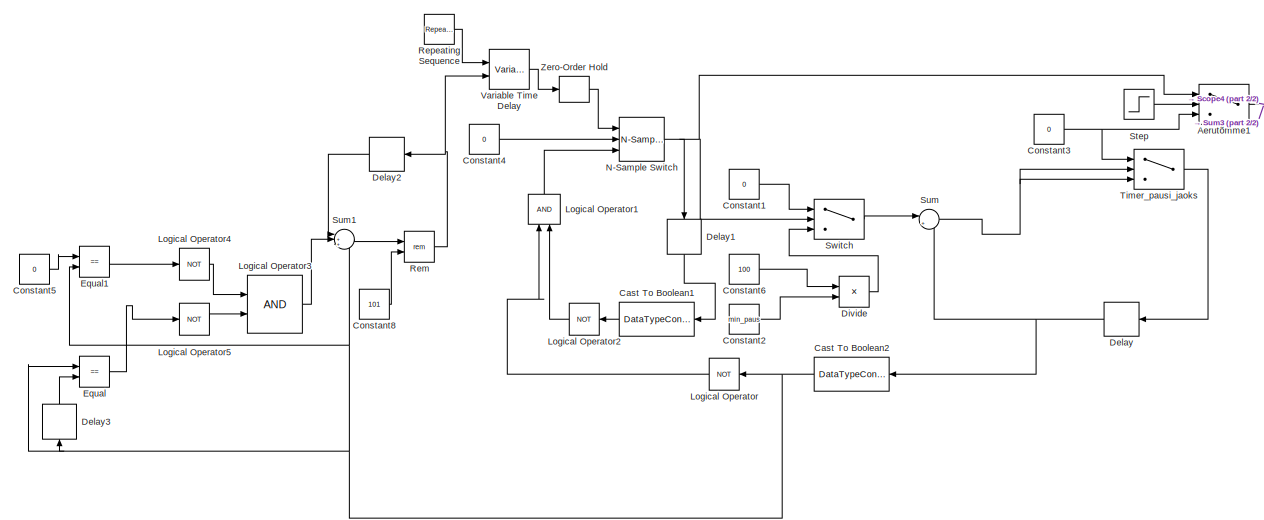
[diagram: root canvas - part 1/2, left side, full height]
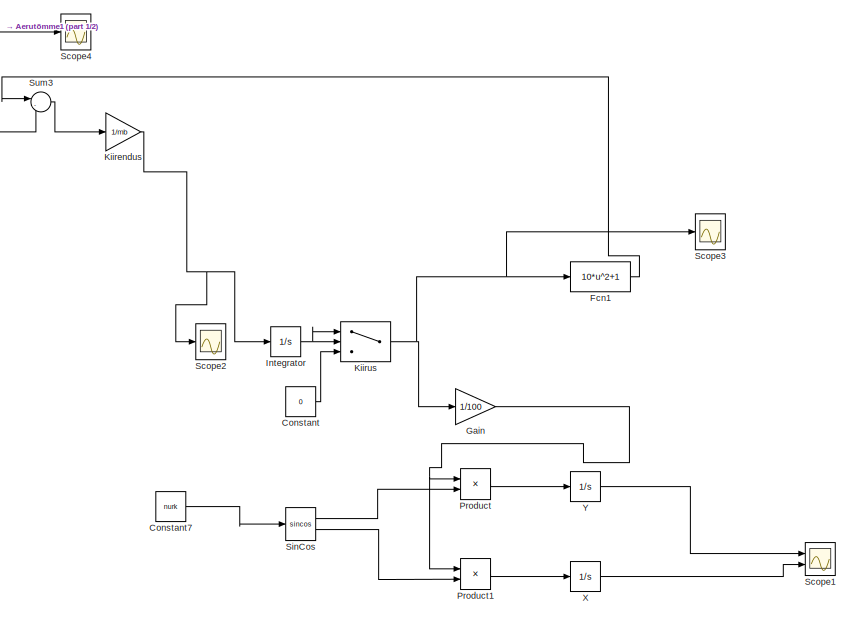
[diagram: root canvas - part 2/2, right side, full height]
MODEL slx_42fdd494897f
KIND model
CONFIG AbsTol = auto
CONFIG EnableMultiTasking = off
CONFIG FixedStep = 1
CONFIG MaxStep = auto
CONFIG MinStep = auto
CONFIG RelTol = 1e-3
CONFIG SampleTimeConstraint = Unconstrained
CONFIG Solver = FixedStepAuto
CONFIG SolverName = FixedStepAuto
CONFIG StartTime = 0.0
CONFIG StopTime = 10000
BLOCK [Switch] Aerutõmme1
  InputSameDT = off
  SaturateOnIntegerOverflow = off
  Threshold = 1
BLOCK [DataTypeConversion] Cast To Boolean1
  OutDataTypeStr = boolean
  RndMeth = Floor
  SaturateOnIntegerOverflow = off
BLOCK [DataTypeConversion] Cast To Boolean2
  OutDataTypeStr = boolean
  RndMeth = Floor
  SaturateOnIntegerOverflow = off
BLOCK [Constant] Constant
  Value = 0
BLOCK [Constant] Constant1
  Value = 0
BLOCK [Constant] Constant2
  SampleTime = 1
  Value = min_paus
BLOCK [Constant] Constant3
  Value = 0
BLOCK [Constant] Constant4
  Value = 0
BLOCK [Constant] Constant5
  Value = 0
BLOCK [Constant] Constant6
  SampleTime = 1
  Value = 100
BLOCK [Constant] Constant7
  Value = nurk
BLOCK [Constant] Constant8
  Value = 101
BLOCK [Delay] Delay
  DelayLength = 1
  InitialCondition = 0
  InputPortMap = u0
  Ports = [1, 1]
BLOCK [Delay] Delay1
  DelayLength = 1
  InitialCondition = 0
  InputPortMap = u0
  Ports = [1, 1]
BLOCK [Delay] Delay2
  DelayLength = 1
  InitialCondition = 0
  InputPortMap = u0
  Ports = [1, 1]
BLOCK [Delay] Delay3
  DelayLength = 1
  InitialCondition = 0
  InputPortMap = u0
  Ports = [1, 1]
BLOCK [Product] Divide
  InputSameDT = off
  Inputs = */
  OutDataTypeStr = Inherit: Inherit via internal rule
  Ports = [2, 1]
  RndMeth = Floor
  SaturateOnIntegerOverflow = off
BLOCK [RelationalOperator] Equal
  InputSameDT = off
  Operator = ==
  OutDataTypeStr = boolean
  Ports = [2, 1]
  RndMeth = Simplest
BLOCK [RelationalOperator] Equal1
  InputSameDT = off
  Operator = ==
  OutDataTypeStr = boolean
  Ports = [2, 1]
  RndMeth = Simplest
BLOCK [Fcn] Fcn1
  Expr = 10*u^2+1
BLOCK [Gain] Gain
  Gain = 1/100
  OutDataTypeStr = Inherit: Inherit via internal rule
  ParamDataTypeStr = Inherit: Inherit via internal rule
  SaturateOnIntegerOverflow = off
BLOCK [Integrator] Integrator
  InitialCondition = vy_0
  Ports = [1, 1]
BLOCK [Gain] Kiirendus
  Gain = 1/mb
  OutDataTypeStr = Inherit: Inherit via internal rule
  ParamDataTypeStr = Inherit: Inherit via internal rule
  SaturateOnIntegerOverflow = off
BLOCK [Switch] Kiirus
  InputSameDT = off
  SaturateOnIntegerOverflow = off
BLOCK [Logic] Logical Operator
  AllPortsSameDT = off
  IconShape = distinctive
  Operator = NOT
  OutDataTypeStr = boolean
  Ports = [1, 1]
BLOCK [Logic] Logical Operator1
  AllPortsSameDT = off
  IconShape = distinctive
  OutDataTypeStr = boolean
  Ports = [2, 1]
BLOCK [Logic] Logical Operator2
  AllPortsSameDT = off
  IconShape = distinctive
  Operator = NOT
  OutDataTypeStr = boolean
  Ports = [1, 1]
BLOCK [Logic] Logical Operator3
  AllPortsSameDT = off
  IconShape = distinctive
  OutDataTypeStr = boolean
  Ports = [2, 1]
BLOCK [Logic] Logical Operator4
  AllPortsSameDT = off
  IconShape = distinctive
  Operator = NOT
  OutDataTypeStr = boolean
  Ports = [1, 1]
BLOCK [Logic] Logical Operator5
  AllPortsSameDT = off
  IconShape = distinctive
  Operator = NOT
  OutDataTypeStr = boolean
  Ports = [1, 1]
BLOCK [Reference] N-Sample Switch  REF=dspswit3/N-Sample
Switch
  Ports = [3, 1]
  SourceBlock = dspswit3/N-Sample\nSwitch
  SourceProductBaseCode = DS
  SourceProductName = DSP System Toolbox
  SourceType = N-Sample Switch
BLOCK [Product] Product
  InputSameDT = off
  OutDataTypeStr = Inherit: Inherit via internal rule
  Ports = [2, 1]
  RndMeth = Floor
  SaturateOnIntegerOverflow = off
BLOCK [Product] Product1
  InputSameDT = off
  OutDataTypeStr = Inherit: Inherit via internal rule
  Ports = [2, 1]
  RndMeth = Floor
  SaturateOnIntegerOverflow = off
BLOCK [Math] Rem
  Operator = rem
  Ports = [2, 1]
BLOCK [Reference] Repeating Sequence  REF=simulink/Sources/Repeating
Sequence
  Ports = [0, 1]
  SourceBlock = simulink/Sources/Repeating\nSequence
  SourceProductBaseCode = SL
  SourceProductName = Simulink
  SourceType = Repeating table
BLOCK [Scope] Scope1
  Floating = off
  NumInputPorts = 2
  Ports = [2]
  ScopeSpecificationString = Simulink.scopes.TimeScopeBlockCfg('CurrentConfiguration', extmgr.ConfigurationSet(extmgr.Configuration('Core','General UI',true),extmgr.Configuration('Core','Source UI',true),extmgr.Configuration('Sources','WiredSimulink',true,'DataLoggingVariableName','ScopeData4'),extmgr.Configuration('Visuals','Time Domain',true,'SerializedDisplays',{struct('MinYLimReal','-15.03406','MaxYLimReal','135.30652','Y...<+1416ch>
BLOCK [Scope] Scope2
  Floating = off
  NumInputPorts = 1
  Ports = [1]
  ScopeSpecificationString = Simulink.scopes.TimeScopeBlockCfg('CurrentConfiguration', extmgr.ConfigurationSet(extmgr.Configuration('Core','General UI',true),extmgr.Configuration('Core','Source UI',true),extmgr.Configuration('Sources','WiredSimulink',true,'DataLoggingVariableName','ScopeData1'),extmgr.Configuration('Visuals','Time Domain',true,'SerializedDisplays',{struct('MinYLimReal','-0.04486','MaxYLimReal','0.08668','YLab...<+1439ch>
BLOCK [Scope] Scope3
  Floating = off
  NumInputPorts = 1
  Ports = [1]
  ScopeSpecificationString = Simulink.scopes.TimeScopeBlockCfg('CurrentConfiguration', extmgr.ConfigurationSet(extmgr.Configuration('Core','General UI',true),extmgr.Configuration('Core','Source UI',true),extmgr.Configuration('Sources','WiredSimulink',true,'DataLoggingVariableName','ScopeData2'),extmgr.Configuration('Visuals','Time Domain',true,'SerializedDisplays',{struct('MinYLimReal','-0.78119','MaxYLimReal','7.03068','YLab...<+1436ch>
BLOCK [Scope] Scope4
  Floating = off
  NumInputPorts = 1
  Ports = [1]
  ScopeSpecificationString = Simulink.scopes.TimeScopeBlockCfg('CurrentConfiguration', extmgr.ConfigurationSet(extmgr.Configuration('Core','General UI',true),extmgr.Configuration('Core','Source UI',true),extmgr.Configuration('Sources','WiredSimulink',true,'DataLoggingVariableName','ScopeData3'),extmgr.Configuration('Visuals','Time Domain',true,'SerializedDisplays',{struct('MinYLimReal','-105.75','MaxYLimReal','951.75','YLabel...<+1461ch>
BLOCK [Trigonometry] SinCos
  Operator = sincos
  Ports = [1, 2]
BLOCK [Step] Step
  After = 0
  Before = 1
  SampleTime = 1
  Time = 2000
BLOCK [Sum] Sum
  IconShape = round
  InputSameDT = off
  Inputs = |++
  OutDataTypeStr = Inherit: Inherit via internal rule
  Ports = [2, 1]
  SaturateOnIntegerOverflow = off
BLOCK [Sum] Sum1
  IconShape = round
  InputSameDT = off
  Inputs = |+++
  OutDataTypeStr = Inherit: Inherit via internal rule
  Ports = [3, 1]
  SaturateOnIntegerOverflow = off
BLOCK [Sum] Sum3
  IconShape = round
  InputSameDT = off
  Inputs = |-+
  OutDataTypeStr = Inherit: Inherit via internal rule
  Ports = [2, 1]
  SaturateOnIntegerOverflow = off
BLOCK [Switch] Switch
  Criteria = u2 > Threshold
  InputSameDT = off
  SaturateOnIntegerOverflow = off
BLOCK [Switch] Timer_pausi_jaoks
  Criteria = u2 > Threshold
  InputSameDT = off
  SaturateOnIntegerOverflow = off
  Threshold = 100
BLOCK [VariableTransportDelay] Variable Time Delay
  MaximumDelay = 200
  MaximumPoints = 256
  Ports = [2, 1]
  ZeroDelay = on
BLOCK [Integrator] X
  InitialCondition = x_0
  Ports = [1, 1]
BLOCK [Integrator] Y
  InitialCondition = y_0
  Ports = [1, 1]
BLOCK [ZeroOrderHold] Zero-Order Hold
NET Aerutõmme1:1 -> Scope4:1, Sum3:2
LINE Cast To Boolean1:1 -> Logical Operator2:1
NET Cast To Boolean2:1 -> Delay3:1, Equal1:2, Equal:1, Logical Operator:1, Sum1:3
LINE Constant1:1 -> Switch:1
LINE Constant2:1 -> Divide:2
NET Constant3:1 -> Aerutõmme1:3, Timer_pausi_jaoks:1
LINE Constant4:1 -> N-Sample Switch:2
LINE Constant5:1 -> Equal1:1
LINE Constant6:1 -> Divide:1
LINE Constant7:1 -> SinCos:1
LINE Constant8:1 -> Rem:2
LINE Constant:1 -> Kiirus:3
LINE Delay1:1 -> Cast To Boolean1:1
LINE Delay2:1 -> Sum1:1
LINE Delay3:1 -> Equal:2
NET Delay:1 -> Cast To Boolean2:1, Sum:2
LINE Divide:1 -> Switch:3
LINE Equal1:1 -> Logical Operator4:1
LINE Equal:1 -> Logical Operator5:1
LINE Fcn1:1 -> Sum3:1
NET Gain:1 -> Product1:1, Product:1
NET Integrator:1 -> Kiirus:1, Kiirus:2
NET Kiirendus:1 -> Integrator:1, Scope2:1
NET Kiirus:1 -> Fcn1:1, Gain:1, Scope3:1
LINE Logical Operator1:1 -> N-Sample Switch:3
LINE Logical Operator2:1 -> Logical Operator1:2
LINE Logical Operator3:1 -> Sum1:2
LINE Logical Operator4:1 -> Logical Operator3:1
LINE Logical Operator5:1 -> Logical Operator3:2
LINE Logical Operator:1 -> Logical Operator1:1
NET N-Sample Switch:1 -> Aerutõmme1:1, Delay1:1, Switch:2
LINE Product1:1 -> X:1
LINE Product:1 -> Y:1
NET Rem:1 -> Delay2:1, Variable Time Delay:2
LINE Repeating Sequence:1 -> Variable Time Delay:1
LINE SinCos:1 -> Product:2
LINE SinCos:2 -> Product1:2
LINE Step:1 -> Aerutõmme1:2
LINE Sum1:1 -> Rem:1
LINE Sum3:1 -> Kiirendus:1
NET Sum:1 -> Timer_pausi_jaoks:2, Timer_pausi_jaoks:3
LINE Switch:1 -> Sum:1
LINE Timer_pausi_jaoks:1 -> Delay:1
LINE Variable Time Delay:1 -> Zero-Order Hold:1
LINE X:1 -> Scope1:2
LINE Y:1 -> Scope1:1
LINE Zero-Order Hold:1 -> N-Sample Switch:1
note: NET lines group one-source signal fan-out (src -> all destinations, sorted); 1:1 wires keep LINE
